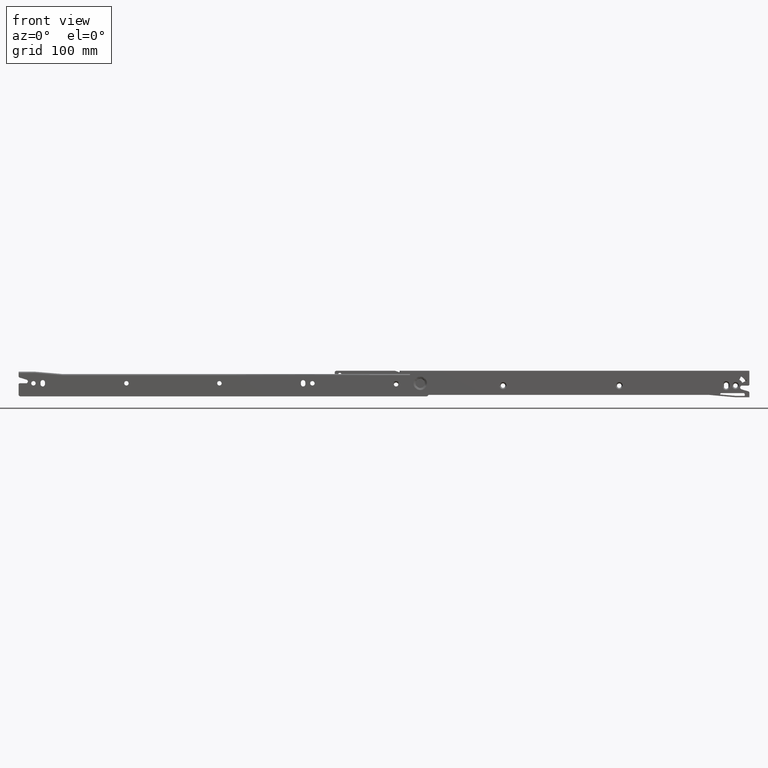
[diagram: clean part render]
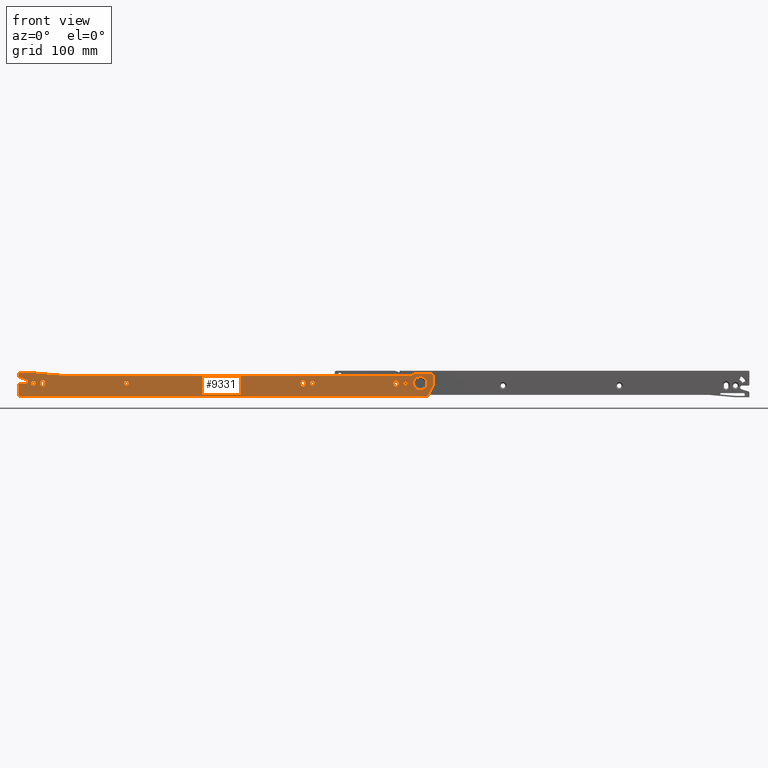
[diagram: same view with one face highlighted and labeled with its STEP entity id]
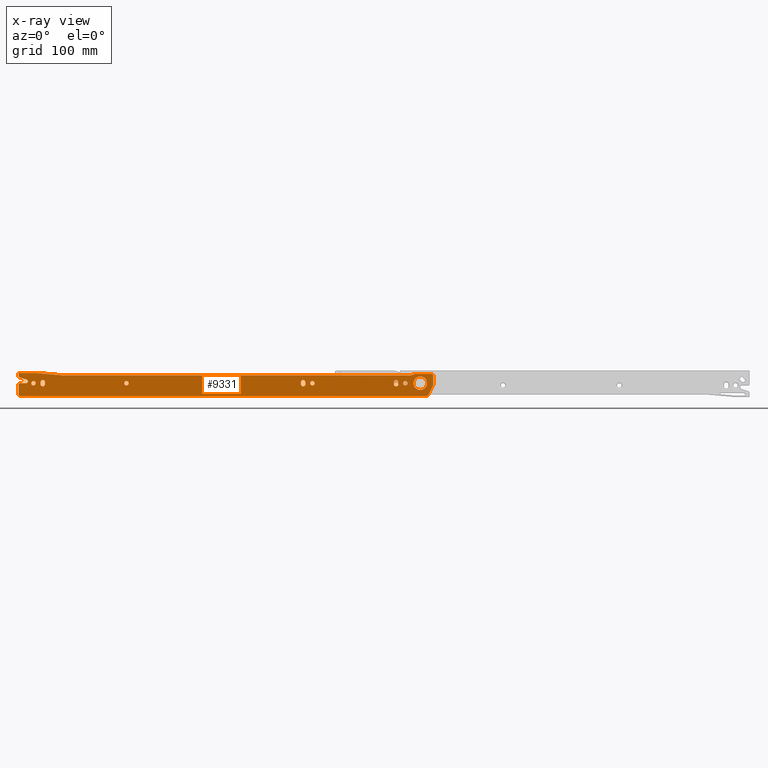
[diagram: x-ray of the same camera — body ghosted, the highlighted face saturated]
A machine part, front view. The second image highlights one B-rep face of the part: STEP entity #9331.
The next image is the same camera in x-ray: the body ghosted, the highlighted face saturated — about 0% of this face is hidden behind the body in this view.
In plain terms, the highlighted face is a freeform B-spline surface patch.
Its self-contained STEP definition (entity closure, byte-faithful):
#5292=CARTESIAN_POINT('',(416.0,0.0,16.399999999999970));
#5293=VERTEX_POINT('',#5292);
#5294=CARTESIAN_POINT('',(413.607398397133810,5.637684E-009,14.188301870189600));
#5295=VERTEX_POINT('',#5294);
#5296=CARTESIAN_POINT('',(416.0,0.0,16.399999999999970));
#5297=CARTESIAN_POINT('',(413.781462894512630,0.0,16.399999999999974));
#5298=CARTESIAN_POINT('',(413.607398397133920,5.637684E-009,14.188301870189603));
#5306=(BOUNDED_CURVE()B_SPLINE_CURVE(2,(#5296,#5297,#5298),.UNSPECIFIED.,.F.,.U.)B_SPLINE_CURVE_WITH_KNOTS((3,3),(0.0,0.236331294894545),.UNSPECIFIED.)CURVE()GEOMETRIC_REPRESENTATION_ITEM()RATIONAL_B_SPLINE_CURVE((1.0,0.723120665327941,0.969723344196585))REPRESENTATION_ITEM(''));
#5307=EDGE_CURVE('',#5293,#5295,#5306,.T.);
#5348=CARTESIAN_POINT('',(418.392601602866080,5.637649E-009,13.811698129810409));
#5349=VERTEX_POINT('',#5348);
#5355=CARTESIAN_POINT('',(418.392601602866020,5.637649E-009,13.811698129810404));
#5356=CARTESIAN_POINT('',(418.399999999999980,0.0,13.905703702951094));
#5357=CARTESIAN_POINT('',(418.399999999999920,0.0,14.0));
#5358=CARTESIAN_POINT('',(418.399999999999810,0.0,16.399999999999970));
#5359=CARTESIAN_POINT('',(416.0,0.0,16.399999999999970));
#5367=(BOUNDED_CURVE()B_SPLINE_CURVE(2,(#5355,#5356,#5357,#5358,#5359),.UNSPECIFIED.,.F.,.U.)B_SPLINE_CURVE_WITH_KNOTS((3,2,3),(0.736331294894547,0.750000000000000,1.0),.UNSPECIFIED.)CURVE()GEOMETRIC_REPRESENTATION_ITEM()RATIONAL_B_SPLINE_CURVE((0.969723344196588,0.983986115858607,1.0,0.707106781186548,1.0))REPRESENTATION_ITEM(''));
#5368=EDGE_CURVE('',#5349,#5293,#5367,.T.);
#5391=CARTESIAN_POINT('',(416.0,0.0,11.600000000000030));
#5392=VERTEX_POINT('',#5391);
#5393=CARTESIAN_POINT('',(413.607398397133810,5.637684E-009,14.188301870189605));
#5394=CARTESIAN_POINT('',(413.599999999999970,0.0,14.094296297048917));
#5395=CARTESIAN_POINT('',(413.600000000000020,0.0,14.0));
#5396=CARTESIAN_POINT('',(413.600000000000020,0.0,11.600000000000025));
#5397=CARTESIAN_POINT('',(416.0,0.0,11.600000000000030));
#5405=(BOUNDED_CURVE()B_SPLINE_CURVE(2,(#5393,#5394,#5395,#5396,#5397),.UNSPECIFIED.,.F.,.U.)B_SPLINE_CURVE_WITH_KNOTS((3,2,3),(0.236331294894545,0.250000000000000,0.500000000000000),.UNSPECIFIED.)CURVE()GEOMETRIC_REPRESENTATION_ITEM()RATIONAL_B_SPLINE_CURVE((0.969723344196585,0.983986115858606,1.0,0.707106781186548,1.0))REPRESENTATION_ITEM(''));
#5406=EDGE_CURVE('',#5295,#5392,#5405,.T.);
#5408=CARTESIAN_POINT('',(416.0,0.0,11.600000000000030));
#5409=CARTESIAN_POINT('',(418.218537105487370,0.0,11.600000000000023));
#5410=CARTESIAN_POINT('',(418.392601602866140,5.637649E-009,13.811698129810404));
#5418=(BOUNDED_CURVE()B_SPLINE_CURVE(2,(#5408,#5409,#5410),.UNSPECIFIED.,.F.,.U.)B_SPLINE_CURVE_WITH_KNOTS((3,3),(0.500000000000000,0.736331294894547),.UNSPECIFIED.)CURVE()GEOMETRIC_REPRESENTATION_ITEM()RATIONAL_B_SPLINE_CURVE((1.0,0.723120665327939,0.969723344196589))REPRESENTATION_ITEM(''));
#5419=EDGE_CURVE('',#5392,#5349,#5418,.T.);
#5474=CARTESIAN_POINT('',(316.0,0.0,16.399999999999970));
#5475=VERTEX_POINT('',#5474);
#5476=CARTESIAN_POINT('',(313.607398397133920,5.637670E-009,14.188301870189600));
#5477=VERTEX_POINT('',#5476);
#5478=CARTESIAN_POINT('',(316.0,0.0,16.399999999999970));
#5479=CARTESIAN_POINT('',(313.781462894512690,0.0,16.399999999999977));
#5480=CARTESIAN_POINT('',(313.607398397133920,5.637670E-009,14.188301870189600));
#5488=(BOUNDED_CURVE()B_SPLINE_CURVE(2,(#5478,#5479,#5480),.UNSPECIFIED.,.F.,.U.)B_SPLINE_CURVE_WITH_KNOTS((3,3),(0.0,0.236331294894546),.UNSPECIFIED.)CURVE()GEOMETRIC_REPRESENTATION_ITEM()RATIONAL_B_SPLINE_CURVE((1.0,0.723120665327941,0.969723344196586))REPRESENTATION_ITEM(''));
#5489=EDGE_CURVE('',#5475,#5477,#5488,.T.);
#5530=CARTESIAN_POINT('',(318.392601602866080,5.637672E-009,13.811698129810400));
#5531=VERTEX_POINT('',#5530);
#5537=CARTESIAN_POINT('',(318.392601602866140,5.637672E-009,13.811698129810402));
#5538=CARTESIAN_POINT('',(318.399999999999920,0.0,13.905703702951085));
#5539=CARTESIAN_POINT('',(318.399999999999980,0.0,14.0));
#5540=CARTESIAN_POINT('',(318.399999999999980,0.0,16.399999999999970));
#5541=CARTESIAN_POINT('',(316.0,0.0,16.399999999999970));
#5549=(BOUNDED_CURVE()B_SPLINE_CURVE(2,(#5537,#5538,#5539,#5540,#5541),.UNSPECIFIED.,.F.,.U.)B_SPLINE_CURVE_WITH_KNOTS((3,2,3),(0.736331294894546,0.750000000000000,1.0),.UNSPECIFIED.)CURVE()GEOMETRIC_REPRESENTATION_ITEM()RATIONAL_B_SPLINE_CURVE((0.969723344196586,0.983986115858607,1.0,0.707106781186548,1.0))REPRESENTATION_ITEM(''));
#5550=EDGE_CURVE('',#5531,#5475,#5549,.T.);
#5573=CARTESIAN_POINT('',(316.0,0.0,11.600000000000030));
#5574=VERTEX_POINT('',#5573);
#5575=CARTESIAN_POINT('',(313.607398397133860,5.637670E-009,14.188301870189596));
#5576=CARTESIAN_POINT('',(313.599999999999970,0.0,14.094296297048922));
#5577=CARTESIAN_POINT('',(313.600000000000020,0.0,14.0));
#5578=CARTESIAN_POINT('',(313.599999999999970,0.0,11.600000000000025));
#5579=CARTESIAN_POINT('',(316.0,0.0,11.600000000000030));
#5587=(BOUNDED_CURVE()B_SPLINE_CURVE(2,(#5575,#5576,#5577,#5578,#5579),.UNSPECIFIED.,.F.,.U.)B_SPLINE_CURVE_WITH_KNOTS((3,2,3),(0.236331294894546,0.250000000000000,0.500000000000000),.UNSPECIFIED.)CURVE()GEOMETRIC_REPRESENTATION_ITEM()RATIONAL_B_SPLINE_CURVE((0.969723344196586,0.983986115858607,1.0,0.707106781186548,1.0))REPRESENTATION_ITEM(''));
#5588=EDGE_CURVE('',#5477,#5574,#5587,.T.);
#5590=CARTESIAN_POINT('',(316.0,0.0,11.600000000000030));
#5591=CARTESIAN_POINT('',(318.218537105487260,0.0,11.600000000000023));
#5592=CARTESIAN_POINT('',(318.392601602866080,5.637672E-009,13.811698129810404));
#5600=(BOUNDED_CURVE()B_SPLINE_CURVE(2,(#5590,#5591,#5592),.UNSPECIFIED.,.F.,.U.)B_SPLINE_CURVE_WITH_KNOTS((3,3),(0.500000000000000,0.736331294894545),.UNSPECIFIED.)CURVE()GEOMETRIC_REPRESENTATION_ITEM()RATIONAL_B_SPLINE_CURVE((1.0,0.723120665327942,0.969723344196585))REPRESENTATION_ITEM(''));
#5601=EDGE_CURVE('',#5574,#5531,#5600,.T.);
#5656=CARTESIAN_POINT('',(216.0,0.0,16.399999999999999));
#5657=VERTEX_POINT('',#5656);
#5658=CARTESIAN_POINT('',(213.607398397133810,5.637673E-009,14.188301870189600));
#5659=VERTEX_POINT('',#5658);
#5660=CARTESIAN_POINT('',(216.0,0.0,16.399999999999999));
#5661=CARTESIAN_POINT('',(213.781462894512740,0.0,16.400000000000009));
#5662=CARTESIAN_POINT('',(213.607398397133780,5.637673E-009,14.188301870189600));
#5670=(BOUNDED_CURVE()B_SPLINE_CURVE(2,(#5660,#5661,#5662),.UNSPECIFIED.,.F.,.U.)B_SPLINE_CURVE_WITH_KNOTS((3,3),(0.0,0.236331294894546),.UNSPECIFIED.)CURVE()GEOMETRIC_REPRESENTATION_ITEM()RATIONAL_B_SPLINE_CURVE((1.0,0.723120665327941,0.969723344196586))REPRESENTATION_ITEM(''));
#5671=EDGE_CURVE('',#5657,#5659,#5670,.T.);
#5712=CARTESIAN_POINT('',(218.392601602866190,5.637665E-009,13.811698129810400));
#5713=VERTEX_POINT('',#5712);
#5719=CARTESIAN_POINT('',(218.392601602866190,5.637665E-009,13.811698129810400));
#5720=CARTESIAN_POINT('',(218.400000000000010,0.0,13.905703702951083));
#5721=CARTESIAN_POINT('',(218.400000000000010,0.0,14.0));
#5722=CARTESIAN_POINT('',(218.400000000000030,0.0,16.400000000000002));
#5723=CARTESIAN_POINT('',(216.0,0.0,16.399999999999999));
#5731=(BOUNDED_CURVE()B_SPLINE_CURVE(2,(#5719,#5720,#5721,#5722,#5723),.UNSPECIFIED.,.F.,.U.)B_SPLINE_CURVE_WITH_KNOTS((3,2,3),(0.736331294894546,0.750000000000000,1.0),.UNSPECIFIED.)CURVE()GEOMETRIC_REPRESENTATION_ITEM()RATIONAL_B_SPLINE_CURVE((0.969723344196586,0.983986115858607,1.0,0.707106781186547,1.0))REPRESENTATION_ITEM(''));
#5732=EDGE_CURVE('',#5713,#5657,#5731,.T.);
#5755=CARTESIAN_POINT('',(216.0,0.0,11.600000000000000));
#5756=VERTEX_POINT('',#5755);
#5757=CARTESIAN_POINT('',(213.607398397133780,5.637673E-009,14.188301870189600));
#5758=CARTESIAN_POINT('',(213.599999999999990,0.0,14.094296297048924));
#5759=CARTESIAN_POINT('',(213.599999999999990,0.0,14.0));
#5760=CARTESIAN_POINT('',(213.599999999999970,0.0,11.600000000000003));
#5761=CARTESIAN_POINT('',(216.0,0.0,11.600000000000000));
#5769=(BOUNDED_CURVE()B_SPLINE_CURVE(2,(#5757,#5758,#5759,#5760,#5761),.UNSPECIFIED.,.F.,.U.)B_SPLINE_CURVE_WITH_KNOTS((3,2,3),(0.236331294894546,0.250000000000000,0.500000000000000),.UNSPECIFIED.)CURVE()GEOMETRIC_REPRESENTATION_ITEM()RATIONAL_B_SPLINE_CURVE((0.969723344196586,0.983986115858606,1.0,0.707106781186547,1.0))REPRESENTATION_ITEM(''));
#5770=EDGE_CURVE('',#5659,#5756,#5769,.T.);
#5772=CARTESIAN_POINT('',(216.0,0.0,11.600000000000000));
#5773=CARTESIAN_POINT('',(218.218537105487290,0.0,11.600000000000001));
#5774=CARTESIAN_POINT('',(218.392601602866190,5.637665E-009,13.811698129810404));
#5782=(BOUNDED_CURVE()B_SPLINE_CURVE(2,(#5772,#5773,#5774),.UNSPECIFIED.,.F.,.U.)B_SPLINE_CURVE_WITH_KNOTS((3,3),(0.500000000000000,0.736331294894545),.UNSPECIFIED.)CURVE()GEOMETRIC_REPRESENTATION_ITEM()RATIONAL_B_SPLINE_CURVE((1.0,0.723120665327942,0.969723344196585))REPRESENTATION_ITEM(''));
#5783=EDGE_CURVE('',#5756,#5713,#5782,.T.);
#5838=CARTESIAN_POINT('',(116.0,0.0,16.399999999999999));
#5839=VERTEX_POINT('',#5838);
#5840=CARTESIAN_POINT('',(113.607398397133810,5.637664E-009,14.188301870189600));
#5841=VERTEX_POINT('',#5840);
#5842=CARTESIAN_POINT('',(116.0,0.0,16.399999999999999));
#5843=CARTESIAN_POINT('',(113.781462894512700,0.0,16.399999999999991));
#5844=CARTESIAN_POINT('',(113.607398397133890,5.637664E-009,14.188301870189596));
#5852=(BOUNDED_CURVE()B_SPLINE_CURVE(2,(#5842,#5843,#5844),.UNSPECIFIED.,.F.,.U.)B_SPLINE_CURVE_WITH_KNOTS((3,3),(0.0,0.236331294894546),.UNSPECIFIED.)CURVE()GEOMETRIC_REPRESENTATION_ITEM()RATIONAL_B_SPLINE_CURVE((1.0,0.723120665327941,0.969723344196587))REPRESENTATION_ITEM(''));
#5853=EDGE_CURVE('',#5839,#5841,#5852,.T.);
#5894=CARTESIAN_POINT('',(118.392601602866190,5.637668E-009,13.811698129810400));
#5895=VERTEX_POINT('',#5894);
#5901=CARTESIAN_POINT('',(118.392601602866250,5.637668E-009,13.811698129810400));
#5902=CARTESIAN_POINT('',(118.399999999999960,0.0,13.905703702951083));
#5903=CARTESIAN_POINT('',(118.400000000000010,0.0,14.0));
#5904=CARTESIAN_POINT('',(118.400000000000020,0.0,16.400000000000002));
#5905=CARTESIAN_POINT('',(116.0,0.0,16.399999999999999));
#5913=(BOUNDED_CURVE()B_SPLINE_CURVE(2,(#5901,#5902,#5903,#5904,#5905),.UNSPECIFIED.,.F.,.U.)B_SPLINE_CURVE_WITH_KNOTS((3,2,3),(0.736331294894546,0.750000000000000,1.0),.UNSPECIFIED.)CURVE()GEOMETRIC_REPRESENTATION_ITEM()RATIONAL_B_SPLINE_CURVE((0.969723344196586,0.983986115858607,1.0,0.707106781186547,1.0))REPRESENTATION_ITEM(''));
#5914=EDGE_CURVE('',#5895,#5839,#5913,.T.);
#5937=CARTESIAN_POINT('',(116.0,0.0,11.600000000000000));
#5938=VERTEX_POINT('',#5937);
#5939=CARTESIAN_POINT('',(113.607398397133790,5.637664E-009,14.188301870189598));
#5940=CARTESIAN_POINT('',(113.599999999999980,0.0,14.094296297048921));
#5941=CARTESIAN_POINT('',(113.599999999999990,0.0,14.0));
#5942=CARTESIAN_POINT('',(113.600000000000010,0.0,11.600000000000003));
#5943=CARTESIAN_POINT('',(116.0,0.0,11.600000000000000));
#5951=(BOUNDED_CURVE()B_SPLINE_CURVE(2,(#5939,#5940,#5941,#5942,#5943),.UNSPECIFIED.,.F.,.U.)B_SPLINE_CURVE_WITH_KNOTS((3,2,3),(0.236331294894546,0.250000000000000,0.500000000000000),.UNSPECIFIED.)CURVE()GEOMETRIC_REPRESENTATION_ITEM()RATIONAL_B_SPLINE_CURVE((0.969723344196586,0.983986115858607,1.0,0.707106781186547,1.0))REPRESENTATION_ITEM(''));
#5952=EDGE_CURVE('',#5841,#5938,#5951,.T.);
#5954=CARTESIAN_POINT('',(116.0,0.0,11.600000000000000));
#5955=CARTESIAN_POINT('',(118.218537105487310,0.0,11.600000000000001));
#5956=CARTESIAN_POINT('',(118.392601602866160,5.637668E-009,13.811698129810404));
#5964=(BOUNDED_CURVE()B_SPLINE_CURVE(2,(#5954,#5955,#5956),.UNSPECIFIED.,.F.,.U.)B_SPLINE_CURVE_WITH_KNOTS((3,3),(0.500000000000000,0.736331294894545),.UNSPECIFIED.)CURVE()GEOMETRIC_REPRESENTATION_ITEM()RATIONAL_B_SPLINE_CURVE((1.0,0.723120665327942,0.969723344196585))REPRESENTATION_ITEM(''));
#5965=EDGE_CURVE('',#5938,#5895,#5964,.T.);
#6422=CARTESIAN_POINT('',(16.0,0.0,16.399999999999999));
#6423=VERTEX_POINT('',#6422);
#6424=CARTESIAN_POINT('',(13.607398397133821,5.637665E-009,14.188301870189600));
#6425=VERTEX_POINT('',#6424);
#6426=CARTESIAN_POINT('',(16.0,0.0,16.399999999999999));
#6427=CARTESIAN_POINT('',(13.781462894512703,0.0,16.400000000000009));
#6428=CARTESIAN_POINT('',(13.607398397133819,5.637665E-009,14.188301870189596));
#6436=(BOUNDED_CURVE()B_SPLINE_CURVE(2,(#6426,#6427,#6428),.UNSPECIFIED.,.F.,.U.)B_SPLINE_CURVE_WITH_KNOTS((3,3),(0.0,0.236331294894546),.UNSPECIFIED.)CURVE()GEOMETRIC_REPRESENTATION_ITEM()RATIONAL_B_SPLINE_CURVE((1.0,0.723120665327941,0.969723344196587))REPRESENTATION_ITEM(''));
#6437=EDGE_CURVE('',#6423,#6425,#6436,.T.);
#6478=CARTESIAN_POINT('',(18.392601602866179,5.637664E-009,13.811698129810400));
#6479=VERTEX_POINT('',#6478);
#6485=CARTESIAN_POINT('',(18.392601602866179,5.637664E-009,13.811698129810400));
#6486=CARTESIAN_POINT('',(18.399999999999995,0.0,13.905703702951083));
#6487=CARTESIAN_POINT('',(18.399999999999999,0.0,14.0));
#6488=CARTESIAN_POINT('',(18.399999999999995,0.0,16.400000000000002));
#6489=CARTESIAN_POINT('',(16.0,0.0,16.399999999999999));
#6497=(BOUNDED_CURVE()B_SPLINE_CURVE(2,(#6485,#6486,#6487,#6488,#6489),.UNSPECIFIED.,.F.,.U.)B_SPLINE_CURVE_WITH_KNOTS((3,2,3),(0.736331294894546,0.750000000000000,1.0),.UNSPECIFIED.)CURVE()GEOMETRIC_REPRESENTATION_ITEM()RATIONAL_B_SPLINE_CURVE((0.969723344196586,0.983986115858607,1.0,0.707106781186547,1.0))REPRESENTATION_ITEM(''));
#6498=EDGE_CURVE('',#6479,#6423,#6497,.T.);
#6521=CARTESIAN_POINT('',(16.0,0.0,11.600000000000000));
#6522=VERTEX_POINT('',#6521);
#6523=CARTESIAN_POINT('',(13.607398397133821,5.637665E-009,14.188301870189598));
#6524=CARTESIAN_POINT('',(13.600000000000007,0.0,14.094296297048919));
#6525=CARTESIAN_POINT('',(13.600000000000000,0.0,14.0));
#6526=CARTESIAN_POINT('',(13.600000000000001,0.0,11.600000000000003));
#6527=CARTESIAN_POINT('',(16.0,0.0,11.600000000000000));
#6535=(BOUNDED_CURVE()B_SPLINE_CURVE(2,(#6523,#6524,#6525,#6526,#6527),.UNSPECIFIED.,.F.,.U.)B_SPLINE_CURVE_WITH_KNOTS((3,2,3),(0.236331294894546,0.250000000000000,0.500000000000000),.UNSPECIFIED.)CURVE()GEOMETRIC_REPRESENTATION_ITEM()RATIONAL_B_SPLINE_CURVE((0.969723344196586,0.983986115858607,1.0,0.707106781186547,1.0))REPRESENTATION_ITEM(''));
#6536=EDGE_CURVE('',#6425,#6522,#6535,.T.);
#6538=CARTESIAN_POINT('',(16.0,0.0,11.600000000000000));
#6539=CARTESIAN_POINT('',(18.218537105487286,0.0,11.600000000000001));
#6540=CARTESIAN_POINT('',(18.392601602866176,5.637664E-009,13.811698129810404));
#6548=(BOUNDED_CURVE()B_SPLINE_CURVE(2,(#6538,#6539,#6540),.UNSPECIFIED.,.F.,.U.)B_SPLINE_CURVE_WITH_KNOTS((3,3),(0.500000000000000,0.736331294894545),.UNSPECIFIED.)CURVE()GEOMETRIC_REPRESENTATION_ITEM()RATIONAL_B_SPLINE_CURVE((1.0,0.723120665327942,0.969723344196585))REPRESENTATION_ITEM(''));
#6549=EDGE_CURVE('',#6522,#6479,#6548,.T.);
#6657=CARTESIAN_POINT('',(426.602319200691110,1.176586E-015,18.819307116848819));
#6658=VERTEX_POINT('',#6657);
#6672=CARTESIAN_POINT('',(432.0,0.0,6.763932022500210));
#6673=VERTEX_POINT('',#6672);
#6674=CARTESIAN_POINT('',(432.0,0.0,6.763932022500210));
#6675=CARTESIAN_POINT('',(424.763932022500170,0.0,6.763932022500212));
#6676=CARTESIAN_POINT('',(424.763932022500230,0.0,14.0));
#6677=CARTESIAN_POINT('',(424.763932022500230,0.0,16.760291870702122));
#6678=CARTESIAN_POINT('',(426.602319200691110,1.176586E-015,18.819307116848819));
#6686=(BOUNDED_CURVE()B_SPLINE_CURVE(2,(#6674,#6675,#6676,#6677,#6678),.UNSPECIFIED.,.F.,.U.)B_SPLINE_CURVE_WITH_KNOTS((3,2,3),(0.500000000000000,0.750000000000000,0.866465190568450),.UNSPECIFIED.)CURVE()GEOMETRIC_REPRESENTATION_ITEM()RATIONAL_B_SPLINE_CURVE((1.0,0.707106781186548,1.0,0.863552541818738,0.854236117394766))REPRESENTATION_ITEM(''));
#6687=EDGE_CURVE('',#6673,#6658,#6686,.T.);
#6689=CARTESIAN_POINT('',(436.163834798710980,1.229599E-015,19.918036738701339));
#6690=VERTEX_POINT('',#6689);
#6691=CARTESIAN_POINT('',(436.163834798710980,1.229599E-015,19.918036738701346));
#6692=CARTESIAN_POINT('',(439.236067977499830,0.0,17.756463288696199));
#6693=CARTESIAN_POINT('',(439.236067977499770,0.0,14.0));
#6694=CARTESIAN_POINT('',(439.236067977499940,0.0,6.763932022500212));
#6695=CARTESIAN_POINT('',(432.0,0.0,6.763932022500210));
#6703=(BOUNDED_CURVE()B_SPLINE_CURVE(2,(#6691,#6692,#6693,#6694,#6695),.UNSPECIFIED.,.F.,.U.)B_SPLINE_CURVE_WITH_KNOTS((3,2,3),(0.098941835654267,0.250000000000000,0.500000000000000),.UNSPECIFIED.)CURVE()GEOMETRIC_REPRESENTATION_ITEM()RATIONAL_B_SPLINE_CURVE((0.859917636219172,0.823024352066907,1.0,0.707106781186548,1.0))REPRESENTATION_ITEM(''));
#6704=EDGE_CURVE('',#6690,#6673,#6703,.T.);
#6755=CARTESIAN_POINT('',(432.0,0.0,21.236067977499790));
#6756=VERTEX_POINT('',#6755);
#6757=CARTESIAN_POINT('',(432.0,0.0,21.236067977499790));
#6758=CARTESIAN_POINT('',(434.290523943328650,0.0,21.236067977499790));
#6759=CARTESIAN_POINT('',(436.163834798710920,1.229599E-015,19.918036738701346));
#6767=(BOUNDED_CURVE()B_SPLINE_CURVE(2,(#6757,#6758,#6759),.UNSPECIFIED.,.F.,.U.)B_SPLINE_CURVE_WITH_KNOTS((3,3),(0.0,0.098941835654267),.UNSPECIFIED.)CURVE()GEOMETRIC_REPRESENTATION_ITEM()RATIONAL_B_SPLINE_CURVE((1.0,0.884082429119641,0.859917636219172))REPRESENTATION_ITEM(''));
#6768=EDGE_CURVE('',#6756,#6690,#6767,.T.);
#6770=CARTESIAN_POINT('',(426.602319200691170,1.176586E-015,18.819307116848815));
#6771=CARTESIAN_POINT('',(428.760118617910340,0.0,21.236067977499786));
#6772=CARTESIAN_POINT('',(432.0,0.0,21.236067977499790));
#6780=(BOUNDED_CURVE()B_SPLINE_CURVE(2,(#6770,#6771,#6772),.UNSPECIFIED.,.F.,.U.)B_SPLINE_CURVE_WITH_KNOTS((3,3),(0.866465190568449,1.0),.UNSPECIFIED.)CURVE()GEOMETRIC_REPRESENTATION_ITEM()RATIONAL_B_SPLINE_CURVE((0.854236117394767,0.843554239367809,1.0))REPRESENTATION_ITEM(''));
#6781=EDGE_CURVE('',#6658,#6756,#6780,.T.);
#6957=CARTESIAN_POINT('',(403.600000000000020,0.0,15.0));
#6958=VERTEX_POINT('',#6957);
#6964=CARTESIAN_POINT('',(403.600000000000020,0.0,12.999999999999799));
#6965=VERTEX_POINT('',#6964);
#6966=CARTESIAN_POINT('',(403.600000000000020,0.0,12.999999999999799));
#6967=CARTESIAN_POINT('',(403.600000000000020,0.0,15.0));
#6968=QUASI_UNIFORM_CURVE('',1,(#6966,#6967),.UNSPECIFIED.,.F.,.U.);
#6969=EDGE_CURVE('',#6965,#6958,#6968,.T.);
#7004=CARTESIAN_POINT('',(408.399999999999980,0.0,12.999999999999799));
#7005=VERTEX_POINT('',#7004);
#7029=CARTESIAN_POINT('',(403.600000000000080,0.0,12.999999999999799));
#7030=CARTESIAN_POINT('',(403.600000000000140,0.0,10.599999999999826));
#7031=CARTESIAN_POINT('',(406.0,0.0,10.599999999999829));
#7032=CARTESIAN_POINT('',(408.399999999999980,0.0,10.599999999999826));
#7033=CARTESIAN_POINT('',(408.399999999999980,0.0,12.999999999999799));
#7041=(BOUNDED_CURVE()B_SPLINE_CURVE(2,(#7029,#7030,#7031,#7032,#7033),.UNSPECIFIED.,.F.,.U.)B_SPLINE_CURVE_WITH_KNOTS((3,2,3),(0.0,0.500000000000000,1.0),.UNSPECIFIED.)CURVE()GEOMETRIC_REPRESENTATION_ITEM()RATIONAL_B_SPLINE_CURVE((1.0,0.707106781186548,1.0,0.707106781186548,1.0))REPRESENTATION_ITEM(''));
#7042=EDGE_CURVE('',#6965,#7005,#7041,.T.);
#7067=CARTESIAN_POINT('',(408.399999999999980,0.0,15.0));
#7068=VERTEX_POINT('',#7067);
#7074=CARTESIAN_POINT('',(408.399999999999980,0.0,15.0));
#7075=CARTESIAN_POINT('',(408.399999999999980,0.0,17.399999999999974));
#7076=CARTESIAN_POINT('',(406.0,0.0,17.399999999999970));
#7077=CARTESIAN_POINT('',(403.600000000000140,0.0,17.399999999999974));
#7078=CARTESIAN_POINT('',(403.600000000000080,0.0,15.0));
#7086=(BOUNDED_CURVE()B_SPLINE_CURVE(2,(#7074,#7075,#7076,#7077,#7078),.UNSPECIFIED.,.F.,.U.)B_SPLINE_CURVE_WITH_KNOTS((3,2,3),(0.0,0.500000000000000,1.0),.UNSPECIFIED.)CURVE()GEOMETRIC_REPRESENTATION_ITEM()RATIONAL_B_SPLINE_CURVE((1.0,0.707106781186548,1.0,0.707106781186548,1.0))REPRESENTATION_ITEM(''));
#7087=EDGE_CURVE('',#7068,#6958,#7086,.T.);
#7114=CARTESIAN_POINT('',(408.399999999999980,0.0,15.0));
#7115=CARTESIAN_POINT('',(408.399999999999980,0.0,12.999999999999799));
#7116=QUASI_UNIFORM_CURVE('',1,(#7114,#7115),.UNSPECIFIED.,.F.,.U.);
#7117=EDGE_CURVE('',#7068,#7005,#7116,.T.);
#7135=CARTESIAN_POINT('',(303.600000000000020,0.0,15.0));
#7136=VERTEX_POINT('',#7135);
#7142=CARTESIAN_POINT('',(303.600000000000020,0.0,12.999999999999799));
#7143=VERTEX_POINT('',#7142);
#7144=CARTESIAN_POINT('',(303.600000000000020,0.0,12.999999999999799));
#7145=CARTESIAN_POINT('',(303.600000000000020,0.0,15.0));
#7146=QUASI_UNIFORM_CURVE('',1,(#7144,#7145),.UNSPECIFIED.,.F.,.U.);
#7147=EDGE_CURVE('',#7143,#7136,#7146,.T.);
#7182=CARTESIAN_POINT('',(308.399999999999980,0.0,12.999999999999799));
#7183=VERTEX_POINT('',#7182);
#7207=CARTESIAN_POINT('',(303.600000000000020,0.0,12.999999999999799));
#7208=CARTESIAN_POINT('',(303.600000000000080,0.0,10.599999999999826));
#7209=CARTESIAN_POINT('',(306.0,0.0,10.599999999999829));
#7210=CARTESIAN_POINT('',(308.400000000000030,0.0,10.599999999999826));
#7211=CARTESIAN_POINT('',(308.399999999999980,0.0,12.999999999999799));
#7219=(BOUNDED_CURVE()B_SPLINE_CURVE(2,(#7207,#7208,#7209,#7210,#7211),.UNSPECIFIED.,.F.,.U.)B_SPLINE_CURVE_WITH_KNOTS((3,2,3),(0.0,0.500000000000000,1.0),.UNSPECIFIED.)CURVE()GEOMETRIC_REPRESENTATION_ITEM()RATIONAL_B_SPLINE_CURVE((1.0,0.707106781186548,1.0,0.707106781186548,1.0))REPRESENTATION_ITEM(''));
#7220=EDGE_CURVE('',#7143,#7183,#7219,.T.);
#7245=CARTESIAN_POINT('',(308.399999999999980,0.0,15.0));
#7246=VERTEX_POINT('',#7245);
#7252=CARTESIAN_POINT('',(308.399999999999980,0.0,15.0));
#7253=CARTESIAN_POINT('',(308.400000000000030,0.0,17.399999999999974));
#7254=CARTESIAN_POINT('',(306.0,0.0,17.399999999999970));
#7255=CARTESIAN_POINT('',(303.600000000000080,0.0,17.399999999999974));
#7256=CARTESIAN_POINT('',(303.600000000000020,0.0,15.0));
#7264=(BOUNDED_CURVE()B_SPLINE_CURVE(2,(#7252,#7253,#7254,#7255,#7256),.UNSPECIFIED.,.F.,.U.)B_SPLINE_CURVE_WITH_KNOTS((3,2,3),(0.0,0.500000000000000,1.0),.UNSPECIFIED.)CURVE()GEOMETRIC_REPRESENTATION_ITEM()RATIONAL_B_SPLINE_CURVE((1.0,0.707106781186548,1.0,0.707106781186548,1.0))REPRESENTATION_ITEM(''));
#7265=EDGE_CURVE('',#7246,#7136,#7264,.T.);
#7292=CARTESIAN_POINT('',(308.399999999999980,0.0,15.0));
#7293=CARTESIAN_POINT('',(308.399999999999980,0.0,12.999999999999799));
#7294=QUASI_UNIFORM_CURVE('',1,(#7292,#7293),.UNSPECIFIED.,.F.,.U.);
#7295=EDGE_CURVE('',#7246,#7183,#7294,.T.);
#7856=CARTESIAN_POINT('',(446.0,0.0,22.0));
#7857=VERTEX_POINT('',#7856);
#7858=CARTESIAN_POINT('',(444.0,0.0,24.0));
#7859=VERTEX_POINT('',#7858);
#7860=CARTESIAN_POINT('',(446.0,0.0,22.0));
#7861=CARTESIAN_POINT('',(445.999999999999940,0.0,23.999999999999996));
#7862=CARTESIAN_POINT('',(444.0,0.0,24.0));
#7870=(BOUNDED_CURVE()B_SPLINE_CURVE(2,(#7860,#7861,#7862),.UNSPECIFIED.,.F.,.U.)CURVE()GEOMETRIC_REPRESENTATION_ITEM()QUASI_UNIFORM_CURVE()RATIONAL_B_SPLINE_CURVE((1.0,0.707106781186548,1.0))REPRESENTATION_ITEM(''));
#7871=EDGE_CURVE('',#7857,#7859,#7870,.T.);
#7908=CARTESIAN_POINT('',(446.0,0.0,11.999999999999799));
#7909=VERTEX_POINT('',#7908);
#7910=CARTESIAN_POINT('',(446.0,0.0,11.999999999999799));
#7911=CARTESIAN_POINT('',(446.0,0.0,22.0));
#7912=QUASI_UNIFORM_CURVE('',1,(#7910,#7911),.UNSPECIFIED.,.F.,.U.);
#7913=EDGE_CURVE('',#7909,#7857,#7912,.T.);
#7936=CARTESIAN_POINT('',(440.552786384763980,0.0,1.105572814528704));
#7937=VERTEX_POINT('',#7936);
#7938=CARTESIAN_POINT('',(440.552786384763980,0.0,1.105572814528704));
#7939=CARTESIAN_POINT('',(446.0,0.0,11.999999999999799));
#7940=QUASI_UNIFORM_CURVE('',1,(#7938,#7939),.UNSPECIFIED.,.F.,.U.);
#7941=EDGE_CURVE('',#7937,#7909,#7940,.T.);
#7973=CARTESIAN_POINT('',(438.763932000000010,0.0,0.0));
#7974=VERTEX_POINT('',#7973);
#7975=CARTESIAN_POINT('',(438.763932000000010,0.0,0.0));
#7976=CARTESIAN_POINT('',(439.999999981770830,0.0,0.0));
#7977=CARTESIAN_POINT('',(440.552786384764200,0.0,1.105572814528627));
#7985=(BOUNDED_CURVE()B_SPLINE_CURVE(2,(#7975,#7976,#7977),.UNSPECIFIED.,.F.,.U.)CURVE()GEOMETRIC_REPRESENTATION_ITEM()QUASI_UNIFORM_CURVE()RATIONAL_B_SPLINE_CURVE((1.0,0.850650807539641,1.0))REPRESENTATION_ITEM(''));
#7986=EDGE_CURVE('',#7974,#7937,#7985,.T.);
#8017=CARTESIAN_POINT('',(422.0,0.0,22.500000000000000));
#8018=VERTEX_POINT('',#8017);
#8019=CARTESIAN_POINT('',(421.0,0.0,22.500000000000000));
#8020=VERTEX_POINT('',#8019);
#8021=CARTESIAN_POINT('',(422.0,0.0,22.500000000000000));
#8022=CARTESIAN_POINT('',(421.0,0.0,22.500000000000000));
#8023=QUASI_UNIFORM_CURVE('',1,(#8021,#8022),.UNSPECIFIED.,.F.,.U.);
#8024=EDGE_CURVE('',#8018,#8020,#8023,.T.);
#8053=CARTESIAN_POINT('',(426.0,0.0,24.0));
#8054=VERTEX_POINT('',#8053);
#8055=CARTESIAN_POINT('',(426.0,0.0,24.0));
#8056=CARTESIAN_POINT('',(422.0,0.0,22.500000000000000));
#8057=QUASI_UNIFORM_CURVE('',1,(#8055,#8056),.UNSPECIFIED.,.F.,.U.);
#8058=EDGE_CURVE('',#8054,#8018,#8057,.T.);
#8081=CARTESIAN_POINT('',(444.0,0.0,24.0));
#8082=CARTESIAN_POINT('',(426.0,0.0,24.0));
#8083=QUASI_UNIFORM_CURVE('',1,(#8081,#8082),.UNSPECIFIED.,.F.,.U.);
#8084=EDGE_CURVE('',#7859,#8054,#8083,.T.);
#8103=CARTESIAN_POINT('',(23.600000000000001,0.0,15.0));
#8104=VERTEX_POINT('',#8103);
#8110=CARTESIAN_POINT('',(23.600000000000001,0.0,12.999999999999799));
#8111=VERTEX_POINT('',#8110);
#8112=CARTESIAN_POINT('',(23.600000000000001,0.0,15.0));
#8113=CARTESIAN_POINT('',(23.600000000000001,0.0,12.999999999999799));
#8114=QUASI_UNIFORM_CURVE('',1,(#8112,#8113),.UNSPECIFIED.,.F.,.U.);
#8115=EDGE_CURVE('',#8104,#8111,#8114,.T.);
#8150=CARTESIAN_POINT('',(28.399999999999999,0.0,12.999999999999799));
#8151=VERTEX_POINT('',#8150);
#8175=CARTESIAN_POINT('',(23.600000000000001,0.0,12.999999999999799));
#8176=CARTESIAN_POINT('',(23.600000000000001,0.0,10.599999999999801));
#8177=CARTESIAN_POINT('',(26.0,0.0,10.599999999999801));
#8178=CARTESIAN_POINT('',(28.400000000000002,0.0,10.599999999999801));
#8179=CARTESIAN_POINT('',(28.399999999999999,0.0,12.999999999999799));
#8187=(BOUNDED_CURVE()B_SPLINE_CURVE(2,(#8175,#8176,#8177,#8178,#8179),.UNSPECIFIED.,.F.,.U.)B_SPLINE_CURVE_WITH_KNOTS((3,2,3),(0.0,0.500000000000000,1.0),.UNSPECIFIED.)CURVE()GEOMETRIC_REPRESENTATION_ITEM()RATIONAL_B_SPLINE_CURVE((1.0,0.707106781186547,1.0,0.707106781186547,1.0))REPRESENTATION_ITEM(''));
#8188=EDGE_CURVE('',#8111,#8151,#8187,.T.);
#8213=CARTESIAN_POINT('',(28.399999999999999,0.0,15.0));
#8214=VERTEX_POINT('',#8213);
#8220=CARTESIAN_POINT('',(28.399999999999999,0.0,15.0));
#8221=CARTESIAN_POINT('',(28.400000000000002,0.0,17.399999999999991));
#8222=CARTESIAN_POINT('',(26.0,0.0,17.399999999999999));
#8223=CARTESIAN_POINT('',(23.600000000000001,0.0,17.399999999999991));
#8224=CARTESIAN_POINT('',(23.600000000000001,0.0,15.0));
#8232=(BOUNDED_CURVE()B_SPLINE_CURVE(2,(#8220,#8221,#8222,#8223,#8224),.UNSPECIFIED.,.F.,.U.)B_SPLINE_CURVE_WITH_KNOTS((3,2,3),(0.0,0.500000000000000,1.0),.UNSPECIFIED.)CURVE()GEOMETRIC_REPRESENTATION_ITEM()RATIONAL_B_SPLINE_CURVE((1.0,0.707106781186547,1.0,0.707106781186547,1.0))REPRESENTATION_ITEM(''));
#8233=EDGE_CURVE('',#8214,#8104,#8232,.T.);
#8260=CARTESIAN_POINT('',(28.399999999999999,0.0,12.999999999999799));
#8261=CARTESIAN_POINT('',(28.399999999999999,0.0,15.0));
#8262=QUASI_UNIFORM_CURVE('',1,(#8260,#8261),.UNSPECIFIED.,.F.,.U.);
#8263=EDGE_CURVE('',#8151,#8214,#8262,.T.);
#8524=CARTESIAN_POINT('',(46.935464506606500,0.0,22.500000000000000));
#8525=VERTEX_POINT('',#8524);
#8539=CARTESIAN_POINT('',(421.0,0.0,22.500000000000000));
#8540=CARTESIAN_POINT('',(46.935464506606500,0.0,22.500000000000000));
#8541=QUASI_UNIFORM_CURVE('',1,(#8539,#8540),.UNSPECIFIED.,.F.,.U.);
#8542=EDGE_CURVE('',#8020,#8525,#8541,.T.);
#8563=CARTESIAN_POINT('',(17.935464506606550,0.0,25.0));
#8564=VERTEX_POINT('',#8563);
#8580=CARTESIAN_POINT('',(46.935464506606500,0.0,22.500000000000000));
#8581=CARTESIAN_POINT('',(17.935464506606550,0.0,25.0));
#8582=QUASI_UNIFORM_CURVE('',1,(#8580,#8581),.UNSPECIFIED.,.F.,.U.);
#8583=EDGE_CURVE('',#8525,#8564,#8582,.T.);
#8613=CARTESIAN_POINT('',(0.0,0.0,25.0));
#8614=VERTEX_POINT('',#8613);
#8630=CARTESIAN_POINT('',(17.935464506606550,0.0,25.0));
#8631=CARTESIAN_POINT('',(0.0,0.0,25.0));
#8632=QUASI_UNIFORM_CURVE('',1,(#8630,#8631),.UNSPECIFIED.,.F.,.U.);
#8633=EDGE_CURVE('',#8564,#8614,#8632,.T.);
#8721=CARTESIAN_POINT('',(-9.947598E-014,0.0,12.500000000000000));
#8722=VERTEX_POINT('',#8721);
#8723=CARTESIAN_POINT('',(0.0,0.0,2.0));
#8724=VERTEX_POINT('',#8723);
#8725=CARTESIAN_POINT('',(-9.947598E-014,0.0,12.500000000000000));
#8726=CARTESIAN_POINT('',(0.0,0.0,2.0));
#8727=QUASI_UNIFORM_CURVE('',1,(#8725,#8726),.UNSPECIFIED.,.F.,.U.);
#8728=EDGE_CURVE('',#8722,#8724,#8727,.T.);
#8766=CARTESIAN_POINT('',(1.499999999999900,0.0,14.0));
#8767=VERTEX_POINT('',#8766);
#8768=CARTESIAN_POINT('',(1.499999999999900,0.0,14.0));
#8769=CARTESIAN_POINT('',(-9.996344E-014,0.0,13.999999999999998));
#8770=CARTESIAN_POINT('',(-9.996344E-014,0.0,12.500000000000000));
#8778=(BOUNDED_CURVE()B_SPLINE_CURVE(2,(#8768,#8769,#8770),.UNSPECIFIED.,.F.,.U.)CURVE()GEOMETRIC_REPRESENTATION_ITEM()QUASI_UNIFORM_CURVE()RATIONAL_B_SPLINE_CURVE((1.0,0.707106781186548,1.0))REPRESENTATION_ITEM(''));
#8779=EDGE_CURVE('',#8767,#8722,#8778,.T.);
#8810=CARTESIAN_POINT('',(8.0,0.0,14.0));
#8811=VERTEX_POINT('',#8810);
#8812=CARTESIAN_POINT('',(8.0,0.0,14.0));
#8813=CARTESIAN_POINT('',(1.499999999999900,0.0,14.0));
#8814=QUASI_UNIFORM_CURVE('',1,(#8812,#8813),.UNSPECIFIED.,.F.,.U.);
#8815=EDGE_CURVE('',#8811,#8767,#8814,.T.);
#8851=CARTESIAN_POINT('',(8.577140990482000,0.0,17.914917302941699));
#8852=VERTEX_POINT('',#8851);
#8853=CARTESIAN_POINT('',(8.0,0.0,14.0));
#8854=CARTESIAN_POINT('',(9.726774151399797,0.0,14.000000000000005));
#8855=CARTESIAN_POINT('',(9.978614996137875,0.0,15.708310615451451));
#8856=CARTESIAN_POINT('',(10.230455840875955,0.0,17.416621230902891));
#8857=CARTESIAN_POINT('',(8.577140990481997,0.0,17.914917302941689));
#8865=(BOUNDED_CURVE()B_SPLINE_CURVE(2,(#8853,#8854,#8855,#8856,#8857),.UNSPECIFIED.,.F.,.U.)B_SPLINE_CURVE_WITH_KNOTS((3,2,3),(0.0,0.500000000000000,1.0),.UNSPECIFIED.)CURVE()GEOMETRIC_REPRESENTATION_ITEM()RATIONAL_B_SPLINE_CURVE((1.0,0.756916340249792,1.0,0.756916340249792,1.0))REPRESENTATION_ITEM(''));
#8866=EDGE_CURVE('',#8811,#8852,#8865,.T.);
#8899=CARTESIAN_POINT('',(1.067144257138398,0.0,20.178371022793751));
#8900=VERTEX_POINT('',#8899);
#8901=CARTESIAN_POINT('',(1.067144257138398,0.0,20.178371022793751));
#8902=CARTESIAN_POINT('',(8.577140990482000,0.0,17.914917302941699));
#8903=QUASI_UNIFORM_CURVE('',1,(#8901,#8902),.UNSPECIFIED.,.F.,.U.);
#8904=EDGE_CURVE('',#8900,#8852,#8903,.T.);
#8936=CARTESIAN_POINT('',(0.0,0.0,21.614559000000000));
#8937=VERTEX_POINT('',#8936);
#8938=CARTESIAN_POINT('',(0.0,0.0,21.614559000000000));
#8939=CARTESIAN_POINT('',(-9.996344E-014,0.0,20.499999895542427));
#8940=CARTESIAN_POINT('',(1.067144257138394,0.0,20.178371022793741));
#8948=(BOUNDED_CURVE()B_SPLINE_CURVE(2,(#8938,#8939,#8940),.UNSPECIFIED.,.F.,.U.)CURVE()GEOMETRIC_REPRESENTATION_ITEM()QUASI_UNIFORM_CURVE()RATIONAL_B_SPLINE_CURVE((1.0,0.802673811470452,1.0))REPRESENTATION_ITEM(''));
#8949=EDGE_CURVE('',#8937,#8900,#8948,.T.);
#8993=CARTESIAN_POINT('',(0.0,0.0,25.0));
#8994=CARTESIAN_POINT('',(0.0,0.0,21.614559000000000));
#8995=QUASI_UNIFORM_CURVE('',1,(#8993,#8994),.UNSPECIFIED.,.F.,.U.);
#8996=EDGE_CURVE('',#8614,#8937,#8995,.T.);
#9058=CARTESIAN_POINT('',(2.0,0.0,0.0));
#9059=VERTEX_POINT('',#9058);
#9060=CARTESIAN_POINT('',(2.0,0.0,0.0));
#9061=CARTESIAN_POINT('',(438.763932000000010,0.0,0.0));
#9062=QUASI_UNIFORM_CURVE('',1,(#9060,#9061),.UNSPECIFIED.,.F.,.U.);
#9063=EDGE_CURVE('',#9059,#7974,#9062,.T.);
#9095=CARTESIAN_POINT('',(0.0,0.0,2.0));
#9096=CARTESIAN_POINT('',(0.0,0.0,0.0));
#9097=CARTESIAN_POINT('',(2.0,0.0,0.0));
#9105=(BOUNDED_CURVE()B_SPLINE_CURVE(2,(#9095,#9096,#9097),.UNSPECIFIED.,.F.,.U.)CURVE()GEOMETRIC_REPRESENTATION_ITEM()QUASI_UNIFORM_CURVE()RATIONAL_B_SPLINE_CURVE((1.0,0.707106781186548,1.0))REPRESENTATION_ITEM(''));
#9106=EDGE_CURVE('',#8724,#9059,#9105,.T.);
#9251=CARTESIAN_POINT('',(-22.277699135565602,0.0,26.248749951545150));
#9252=CARTESIAN_POINT('',(468.277711098217710,0.0,26.248749951545150));
#9253=CARTESIAN_POINT('',(-22.277699135565602,0.0,-1.248750622097401));
#9254=CARTESIAN_POINT('',(468.277711098217710,0.0,-1.248750622097401));
#9255=B_SPLINE_SURFACE_WITH_KNOTS('',1,1,((#9251,#9253),(#9252,#9254)),.UNSPECIFIED.,.F.,.F.,.U.,(2,2),(2,2),(0.0,490.555410233783280),(0.0,27.497500573642551),.UNSPECIFIED.);
#9256=ORIENTED_EDGE('',*,*,#9063,.T.);
#9257=ORIENTED_EDGE('',*,*,#7986,.T.);
#9258=ORIENTED_EDGE('',*,*,#7941,.T.);
#9259=ORIENTED_EDGE('',*,*,#7913,.T.);
#9260=ORIENTED_EDGE('',*,*,#7871,.T.);
#9261=ORIENTED_EDGE('',*,*,#8084,.T.);
#9262=ORIENTED_EDGE('',*,*,#8058,.T.);
#9263=ORIENTED_EDGE('',*,*,#8024,.T.);
#9264=ORIENTED_EDGE('',*,*,#8542,.T.);
#9265=ORIENTED_EDGE('',*,*,#8583,.T.);
#9266=ORIENTED_EDGE('',*,*,#8633,.T.);
#9267=ORIENTED_EDGE('',*,*,#8996,.T.);
#9268=ORIENTED_EDGE('',*,*,#8949,.T.);
#9269=ORIENTED_EDGE('',*,*,#8904,.T.);
#9270=ORIENTED_EDGE('',*,*,#8866,.F.);
#9271=ORIENTED_EDGE('',*,*,#8815,.T.);
#9272=ORIENTED_EDGE('',*,*,#8779,.T.);
#9273=ORIENTED_EDGE('',*,*,#8728,.T.);
#9274=ORIENTED_EDGE('',*,*,#9106,.T.);
#9275=EDGE_LOOP('',(#9256,#9257,#9258,#9259,#9260,#9261,#9262,#9263,#9264,#9265,#9266,#9267,#9268,#9269,#9270,#9271,#9272,#9273,#9274));
#9276=FACE_OUTER_BOUND('',#9275,.T.);
#9277=ORIENTED_EDGE('',*,*,#6969,.T.);
#9278=ORIENTED_EDGE('',*,*,#7087,.F.);
#9279=ORIENTED_EDGE('',*,*,#7117,.T.);
#9280=ORIENTED_EDGE('',*,*,#7042,.F.);
#9281=EDGE_LOOP('',(#9277,#9278,#9279,#9280));
#9282=FACE_BOUND('',#9281,.T.);
#9283=ORIENTED_EDGE('',*,*,#8188,.F.);
#9284=ORIENTED_EDGE('',*,*,#8115,.F.);
#9285=ORIENTED_EDGE('',*,*,#8233,.F.);
#9286=ORIENTED_EDGE('',*,*,#8263,.F.);
#9287=EDGE_LOOP('',(#9283,#9284,#9285,#9286));
#9288=FACE_BOUND('',#9287,.T.);
#9289=ORIENTED_EDGE('',*,*,#7147,.T.);
#9290=ORIENTED_EDGE('',*,*,#7265,.F.);
#9291=ORIENTED_EDGE('',*,*,#7295,.T.);
#9292=ORIENTED_EDGE('',*,*,#7220,.F.);
#9293=EDGE_LOOP('',(#9289,#9290,#9291,#9292));
#9294=FACE_BOUND('',#9293,.T.);
#9295=ORIENTED_EDGE('',*,*,#6687,.T.);
#9296=ORIENTED_EDGE('',*,*,#6781,.T.);
#9297=ORIENTED_EDGE('',*,*,#6768,.T.);
#9298=ORIENTED_EDGE('',*,*,#6704,.T.);
#9299=EDGE_LOOP('',(#9295,#9296,#9297,#9298));
#9300=FACE_BOUND('',#9299,.T.);
#9301=ORIENTED_EDGE('',*,*,#6549,.F.);
#9302=ORIENTED_EDGE('',*,*,#6536,.F.);
#9303=ORIENTED_EDGE('',*,*,#6437,.F.);
#9304=ORIENTED_EDGE('',*,*,#6498,.F.);
#9305=EDGE_LOOP('',(#9301,#9302,#9303,#9304));
#9306=FACE_BOUND('',#9305,.T.);
#9307=ORIENTED_EDGE('',*,*,#5965,.F.);
#9308=ORIENTED_EDGE('',*,*,#5952,.F.);
#9309=ORIENTED_EDGE('',*,*,#5853,.F.);
#9310=ORIENTED_EDGE('',*,*,#5914,.F.);
#9311=EDGE_LOOP('',(#9307,#9308,#9309,#9310));
#9312=FACE_BOUND('',#9311,.T.);
#9313=ORIENTED_EDGE('',*,*,#5783,.F.);
#9314=ORIENTED_EDGE('',*,*,#5770,.F.);
#9315=ORIENTED_EDGE('',*,*,#5671,.F.);
#9316=ORIENTED_EDGE('',*,*,#5732,.F.);
#9317=EDGE_LOOP('',(#9313,#9314,#9315,#9316));
#9318=FACE_BOUND('',#9317,.T.);
#9319=ORIENTED_EDGE('',*,*,#5601,.F.);
#9320=ORIENTED_EDGE('',*,*,#5588,.F.);
#9321=ORIENTED_EDGE('',*,*,#5489,.F.);
#9322=ORIENTED_EDGE('',*,*,#5550,.F.);
#9323=EDGE_LOOP('',(#9319,#9320,#9321,#9322));
#9324=FACE_BOUND('',#9323,.T.);
#9325=ORIENTED_EDGE('',*,*,#5419,.F.);
#9326=ORIENTED_EDGE('',*,*,#5406,.F.);
#9327=ORIENTED_EDGE('',*,*,#5307,.F.);
#9328=ORIENTED_EDGE('',*,*,#5368,.F.);
#9329=EDGE_LOOP('',(#9325,#9326,#9327,#9328));
#9330=FACE_BOUND('',#9329,.T.);
#9331=ADVANCED_FACE('',(#9276,#9282,#9288,#9294,#9300,#9306,#9312,#9318,#9324,#9330),#9255,.F.);